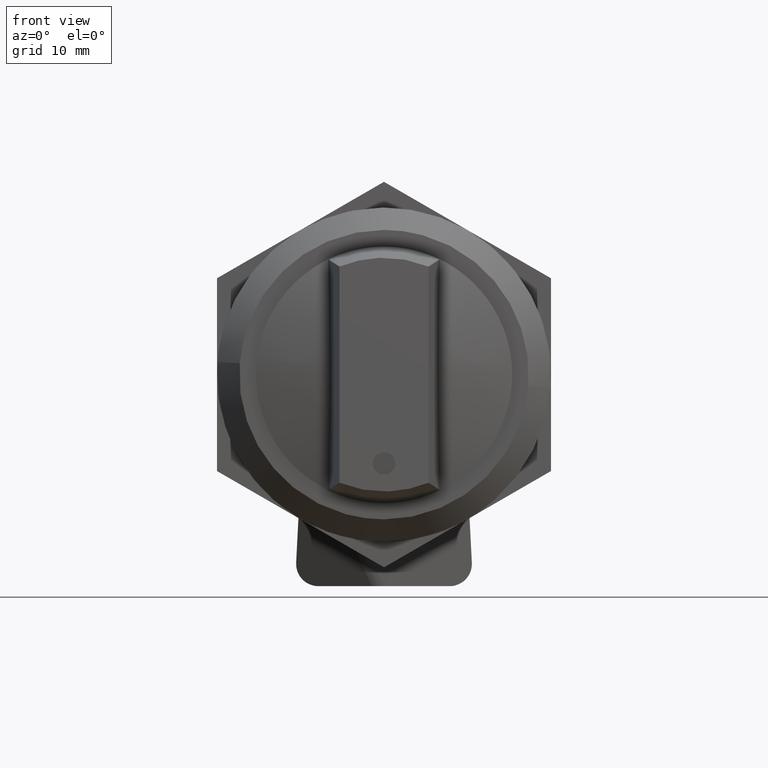
[diagram: clean part render]
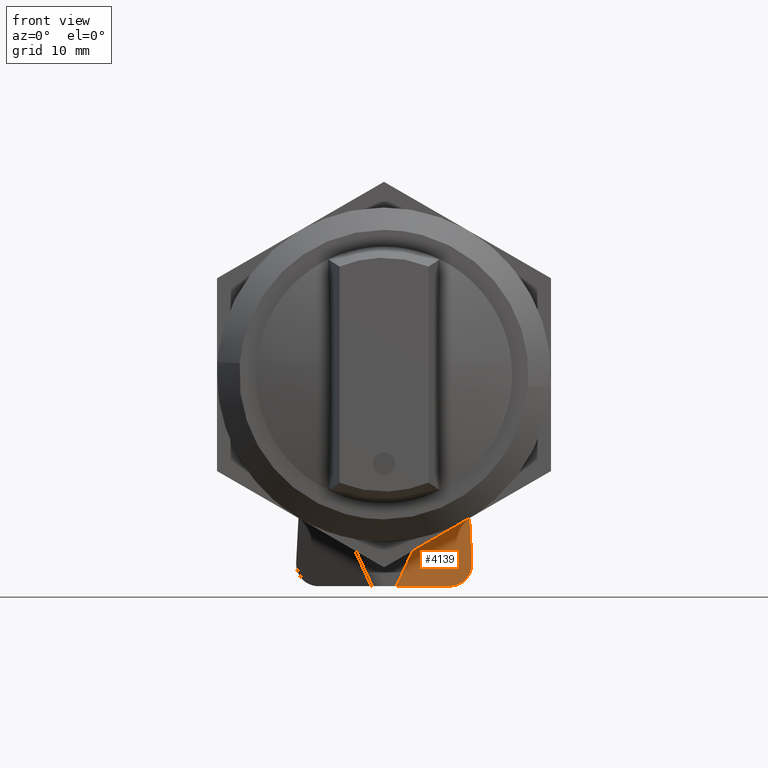
[diagram: same view with one face highlighted and labeled with its STEP entity id]
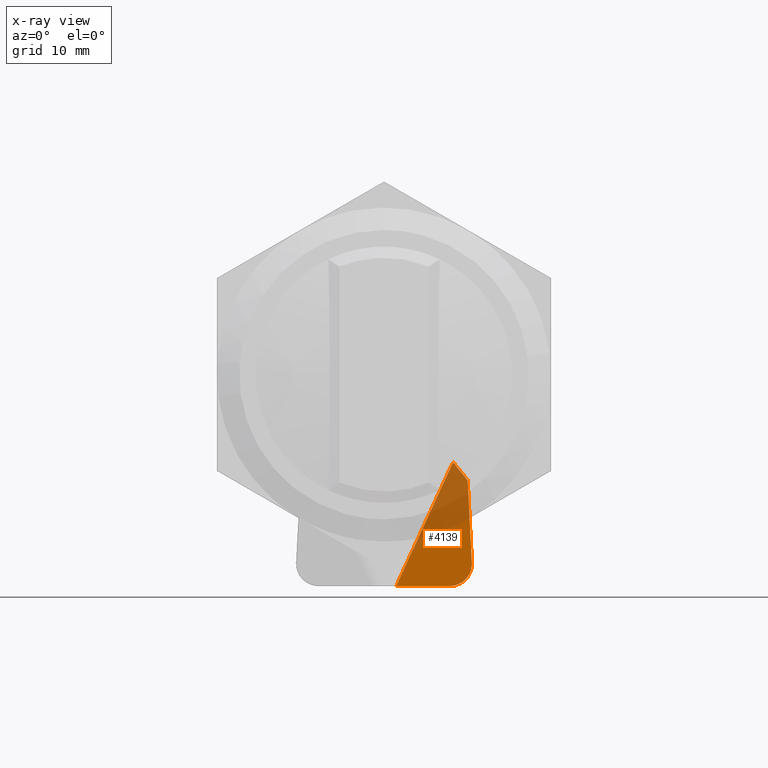
[diagram: x-ray of the same camera — body ghosted, the highlighted face saturated]
A machine part, front view. The second image highlights one B-rep face of the part: STEP entity #4139.
The next image is the same camera in x-ray: the body ghosted, the highlighted face saturated — about 40% of this face is hidden behind the body in this view.
In plain terms, the highlighted face is a freeform B-spline surface patch.
Its self-contained STEP definition (entity closure, byte-faithful):
#4087=CARTESIAN_POINT('',(7.981157636569144,22.313224953593281,-19.555899759385490));
#4088=CARTESIAN_POINT('',(0.715025769365465,18.499604215609619,-19.555899759385490));
#4089=CARTESIAN_POINT('',(9.192857705613260,20.004560015445978,-7.314975198246459));
#4090=CARTESIAN_POINT('',(1.926725838409580,16.190939277462309,-7.314975198246459));
#4091=B_SPLINE_SURFACE_WITH_KNOTS('',1,1,((#4087,#4089),(#4088,#4090)),.UNSPECIFIED.,.F.,.F.,.U.,(2,2),(2,2),(0.0,8.206118171509107),(0.0,12.515525756653179),.UNSPECIFIED.);
#4092=CARTESIAN_POINT('',(7.512000000000000,19.647984022657500,-9.500000000000000));
#4093=VERTEX_POINT('',#4092);
#4094=CARTESIAN_POINT('',(6.200880406140240,18.567949192431151,-7.870875256138329));
#4095=VERTEX_POINT('',#4094);
#4096=CARTESIAN_POINT('',(7.512000000000000,19.647984022657500,-9.500000000000000));
#4097=CARTESIAN_POINT('',(6.200880406140240,18.567949192431151,-7.870875256138329));
#4098=QUASI_UNIFORM_CURVE('',1,(#4096,#4097),.UNSPECIFIED.,.F.,.U.);
#4099=EDGE_CURVE('',#4093,#4095,#4098,.T.);
#4100=ORIENTED_EDGE('',*,*,#4099,.T.);
#4101=CARTESIAN_POINT('',(1.100031565203722,18.567949192431151,-19.0));
#4102=VERTEX_POINT('',#4101);
#4103=CARTESIAN_POINT('',(6.200880406140240,18.567949192431151,-7.870875256138329));
#4104=CARTESIAN_POINT('',(1.100031565203722,18.567949192431151,-19.0));
#4105=QUASI_UNIFORM_CURVE('',1,(#4103,#4104),.UNSPECIFIED.,.F.,.U.);
#4106=EDGE_CURVE('',#4095,#4102,#4105,.T.);
#4107=ORIENTED_EDGE('',*,*,#4106,.T.);
#4108=CARTESIAN_POINT('',(5.894626181624260,21.084386520239100,-19.0));
#4109=VERTEX_POINT('',#4108);
#4110=CARTESIAN_POINT('',(1.100031565203722,18.567949192431151,-19.0));
#4111=CARTESIAN_POINT('',(5.894626181624260,21.084386520239100,-19.0));
#4112=QUASI_UNIFORM_CURVE('',1,(#4110,#4111),.UNSPECIFIED.,.F.,.U.);
#4113=EDGE_CURVE('',#4102,#4109,#4112,.T.);
#4114=ORIENTED_EDGE('',*,*,#4113,.T.);
#4115=CARTESIAN_POINT('',(7.891992677597600,21.626909158852850,-16.897398436838451));
#4116=VERTEX_POINT('',#4115);
#4117=CARTESIAN_POINT('',(5.894626181624260,21.084386520239100,-19.0));
#4118=CARTESIAN_POINT('',(6.050366148788421,21.166129743741259,-19.000013657862070));
#4119=CARTESIAN_POINT('',(6.271126514760466,21.275852079123950,-18.974474948905929));
#4120=CARTESIAN_POINT('',(6.596504680255591,21.423737365254080,-18.879324182283849));
#4121=CARTESIAN_POINT('',(6.882963691375174,21.543505188586121,-18.752202482341179));
#4122=CARTESIAN_POINT('',(7.218077528224292,21.663706200533412,-18.520725581920772));
#4123=CARTESIAN_POINT('',(7.491208062011905,21.736232329930228,-18.226298526991169));
#4124=CARTESIAN_POINT('',(7.693865810153413,21.763077924117400,-17.895734409119449));
#4125=CARTESIAN_POINT('',(7.824432116194534,21.752527158696989,-17.567002501873979));
#4126=CARTESIAN_POINT('',(7.891754424212024,21.705103029687731,-17.222973406906078));
#4127=CARTESIAN_POINT('',(7.897228354167987,21.654154182421809,-16.999233828622579));
#4128=CARTESIAN_POINT('',(7.891992677597600,21.626909158852850,-16.897398436838451));
#4129=B_SPLINE_CURVE_WITH_KNOTS('',3,(#4117,#4118,#4119,#4120,#4121,#4122,#4123,#4124,#4125,#4126,#4127,#4128),.UNSPECIFIED.,.F.,.U.,(4,1,1,1,1,1,1,1,1,4),(-0.000001245256782,0.527777030186161,0.738890916221066,1.108343648733760,1.530567783237415,2.005541373926924,2.322205165100448,2.691650334363720,3.061096506093017,3.377758909532409),.UNSPECIFIED.);
#4130=EDGE_CURVE('',#4109,#4116,#4129,.T.);
#4131=ORIENTED_EDGE('',*,*,#4130,.T.);
#4132=CARTESIAN_POINT('',(7.891992677597600,21.626909158852850,-16.897398436838451));
#4133=CARTESIAN_POINT('',(7.512000000000000,19.647984022657500,-9.500000000000000));
#4134=QUASI_UNIFORM_CURVE('',1,(#4132,#4133),.UNSPECIFIED.,.F.,.U.);
#4135=EDGE_CURVE('',#4116,#4093,#4134,.T.);
#4136=ORIENTED_EDGE('',*,*,#4135,.T.);
#4137=EDGE_LOOP('',(#4100,#4107,#4114,#4131,#4136));
#4138=FACE_OUTER_BOUND('',#4137,.T.);
#4139=ADVANCED_FACE('',(#4138),#4091,.F.);